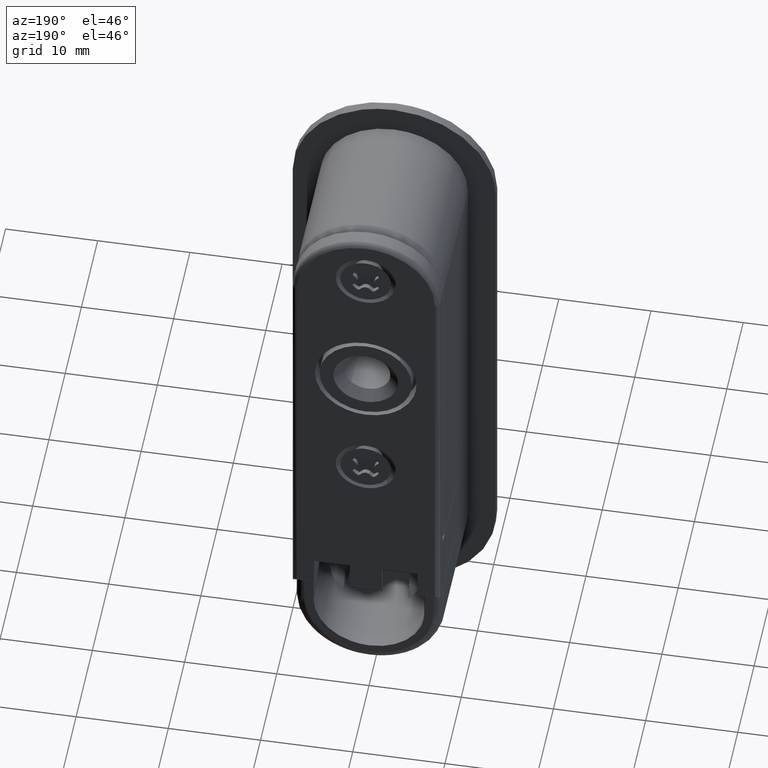
[diagram: clean part render]
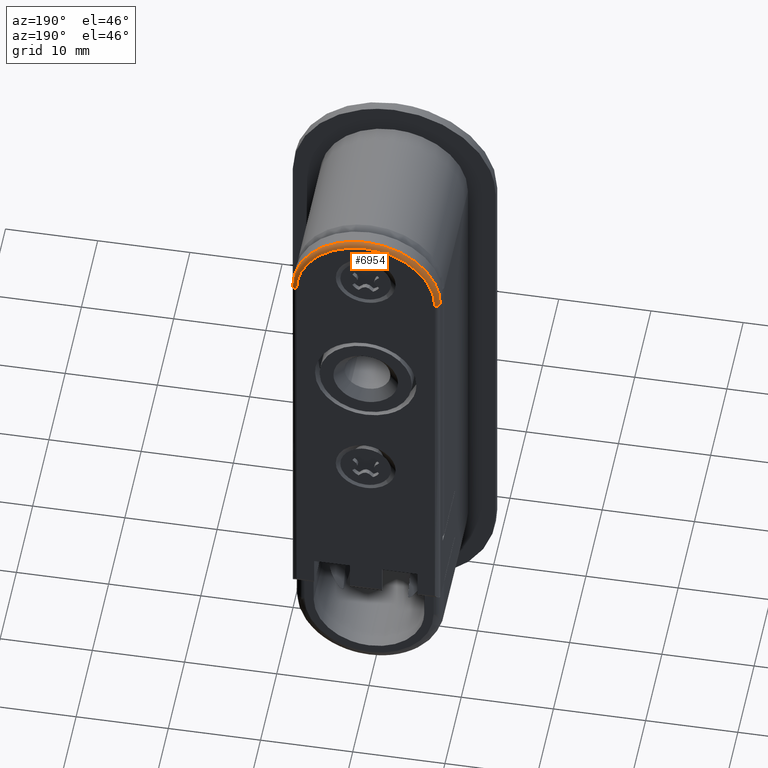
[diagram: same view with one face highlighted and labeled with its STEP entity id]
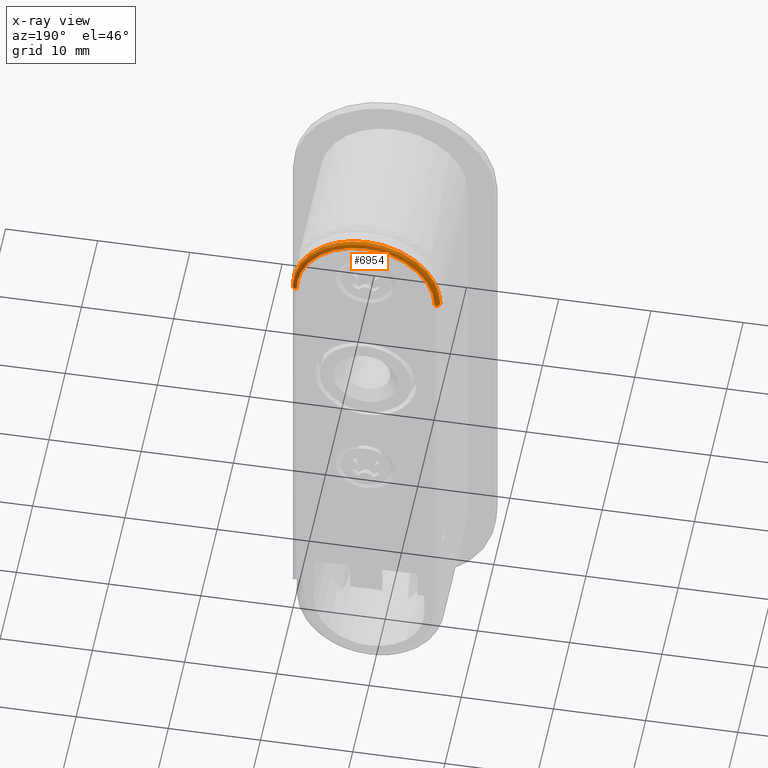
[diagram: x-ray of the same camera — body ghosted, the highlighted face saturated]
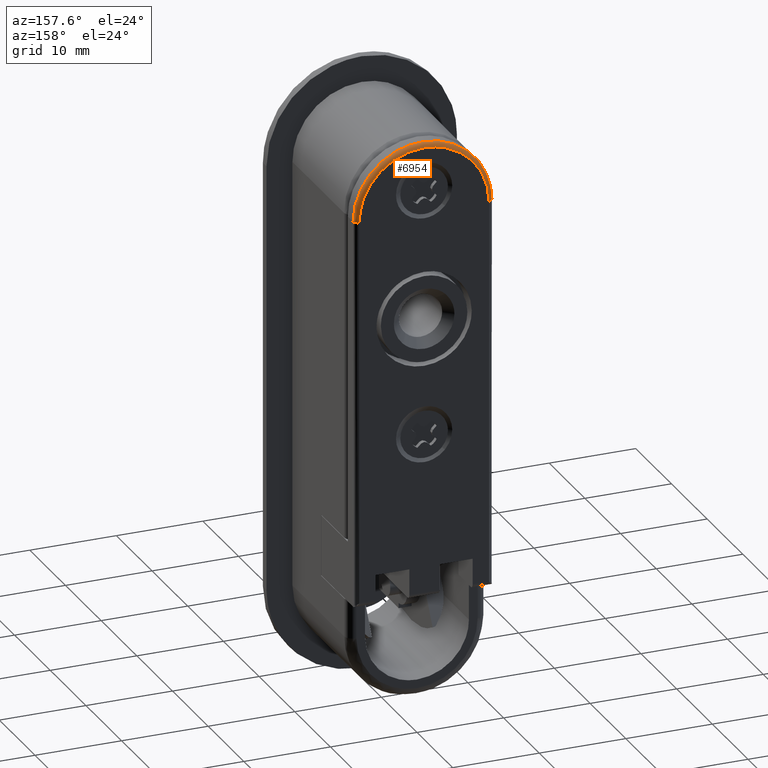
[diagram: same view with one face highlighted and labeled with its STEP entity id]
A machine part, auxiliary view. The second image highlights one B-rep face of the part: STEP entity #6954.
The next image is the same camera in x-ray: the body ghosted, the highlighted face saturated — about 0% of this face is hidden behind the body in this view.
A second angle (auxiliary view) of the same face is appended — the face is thin or edge-on in the first view.
In plain terms, the highlighted face is a freeform B-spline surface patch.
Its self-contained STEP definition (entity closure, byte-faithful):
#5100=CARTESIAN_POINT('',(-7.499999999999999,12.000000000049200,41.500000000014012));
#5101=VERTEX_POINT('',#5100);
#5107=CARTESIAN_POINT('',(0.000001128365799,12.000000000049200,49.000000000013692));
#5108=VERTEX_POINT('',#5107);
#5109=CARTESIAN_POINT('',(-7.499999999999999,12.000000000049200,41.500000000014012));
#5110=CARTESIAN_POINT('',(-7.500101783111068,12.000000000049200,42.052240832260168));
#5111=CARTESIAN_POINT('',(-7.387657950240686,12.000000000049191,43.064618085157448));
#5112=CARTESIAN_POINT('',(-6.951368799595961,12.000000000049241,44.413055748396353));
#5113=CARTESIAN_POINT('',(-6.420688062213513,12.000000000049120,45.420616253843818));
#5114=CARTESIAN_POINT('',(-5.778221610078292,12.000000000049219,46.321061148087317));
#5115=CARTESIAN_POINT('',(-5.098789442588561,12.000000000049230,47.034714342915471));
#5116=CARTESIAN_POINT('',(-4.182731466895677,12.000000000049180,47.758691432499077));
#5117=CARTESIAN_POINT('',(-3.167633007408419,12.000000000049210,48.342036404113308));
#5118=CARTESIAN_POINT('',(-1.717963747864389,12.000000000049200,48.860719003666162));
#5119=CARTESIAN_POINT('',(-0.644292917732422,12.000000000049210,49.000209476356432));
#5120=CARTESIAN_POINT('',(0.000001128365799,12.000000000049200,49.000000000013692));
#5121=B_SPLINE_CURVE_WITH_KNOTS('',3,(#5109,#5110,#5111,#5112,#5113,#5114,#5115,#5116,#5117,#5118,#5119,#5120),.UNSPECIFIED.,.F.,.U.,(4,1,1,1,1,1,1,1,1,4),(0.000000032479953,1.656703615167171,3.037302486870118,4.233828489456463,5.062190709090426,6.350694220941579,7.179064487230969,8.559664245089049,9.848224876135495,11.781047007533219),.UNSPECIFIED.);
#5122=EDGE_CURVE('',#5101,#5108,#5121,.T.);
#5124=CARTESIAN_POINT('',(7.499999999999771,12.000000000049200,41.500000000014012));
#5125=VERTEX_POINT('',#5124);
#5126=CARTESIAN_POINT('',(0.000001128365799,12.000000000049200,49.000000000013692));
#5127=CARTESIAN_POINT('',(0.429508513556774,12.000000000049191,49.000024835646521));
#5128=CARTESIAN_POINT('',(1.380581301384249,12.000000000049210,48.918127437876322));
#5129=CARTESIAN_POINT('',(2.686431920012060,12.000000000049219,48.548136459930859));
#5130=CARTESIAN_POINT('',(3.817017807811974,12.000000000049180,47.987634003976261));
#5131=CARTESIAN_POINT('',(4.776458875996017,12.000000000049230,47.320691820468603));
#5132=CARTESIAN_POINT('',(5.534714150770748,12.000000000049170,46.598788643309902));
#5133=CARTESIAN_POINT('',(6.258693211530202,12.000000000049290,45.682733767369903));
#5134=CARTESIAN_POINT('',(6.842032798964343,12.000000000049029,44.667631732865630));
#5135=CARTESIAN_POINT('',(7.360731026762397,12.000000000049340,43.217967207383950));
#5136=CARTESIAN_POINT('',(7.500196368746857,12.000000000049130,42.144292265397873));
#5137=CARTESIAN_POINT('',(7.499999999999771,12.000000000049200,41.500000000014012));
#5138=B_SPLINE_CURVE_WITH_KNOTS('',3,(#5126,#5127,#5128,#5129,#5130,#5131,#5132,#5133,#5134,#5135,#5136,#5137),.UNSPECIFIED.,.F.,.U.,(4,1,1,1,1,1,1,1,1,4),(0.000000032860946,1.288532660889167,2.853221713079094,4.049747089234615,5.062190162630781,6.350693535566588,7.179063712820294,8.559663320790584,9.848223812552901,11.781045735593869),.UNSPECIFIED.);
#5139=EDGE_CURVE('',#5108,#5125,#5138,.T.);
#6019=CARTESIAN_POINT('',(7.999999999999770,11.500000000049241,41.500000000014012));
#6020=VERTEX_POINT('',#6019);
#6869=CARTESIAN_POINT('',(7.499999999999771,12.000000000049200,41.500000000014012));
#6870=CARTESIAN_POINT('',(7.573654114324267,12.000115140531610,41.500000000014012));
#6871=CARTESIAN_POINT('',(7.712628815874464,11.968705310206040,41.500000000014033));
#6872=CARTESIAN_POINT('',(7.873428949446218,11.849502506791641,41.500000000013870));
#6873=CARTESIAN_POINT('',(7.975550520383315,11.688122833451031,41.500000000014289));
#6874=CARTESIAN_POINT('',(8.000067224759818,11.565460222444200,41.500000000013827));
#6875=CARTESIAN_POINT('',(7.999999999999770,11.500000000049241,41.500000000014012));
#6876=B_SPLINE_CURVE_WITH_KNOTS('',3,(#6869,#6870,#6871,#6872,#6873,#6874,#6875),.UNSPECIFIED.,.F.,.U.,(4,1,1,1,4),(0.000000153093245,0.220920011260662,0.417279695214484,0.589107744513734,0.785476941653875),.UNSPECIFIED.);
#6877=EDGE_CURVE('',#5125,#6020,#6876,.T.);
#6882=CARTESIAN_POINT('',(-7.918399863119090,11.465137866158123,40.368860971045990));
#6883=CARTESIAN_POINT('',(-9.222604183134322,11.465137866158123,49.498783150912594));
#6884=CARTESIAN_POINT('',(7.020140E-016,11.465137866158127,49.498783150912594));
#6885=CARTESIAN_POINT('',(9.222604289430256,11.465137866158122,49.498783150912615));
#6886=CARTESIAN_POINT('',(7.918399850213066,11.465137866158127,40.368860880698932));
#6887=CARTESIAN_POINT('',(-7.958083532971561,12.038667853186675,40.363192180815801));
#6888=CARTESIAN_POINT('',(-9.268823973232088,12.038667853186675,49.538869667793392));
#6889=CARTESIAN_POINT('',(7.371315E-016,12.038667853186677,49.538869667793378));
#6890=CARTESIAN_POINT('',(9.268824080060737,12.038667853186677,49.538869667793413));
#6891=CARTESIAN_POINT('',(7.958083520000859,12.038667853186679,40.363192090015957));
#6892=CARTESIAN_POINT('',(-7.390302375809749,11.998796174783449,40.444299404229653));
#6893=CARTESIAN_POINT('',(-8.607526114363573,11.998796174783443,48.965324705198533));
#6894=CARTESIAN_POINT('',(7.346901E-016,11.998796174783449,48.965324705198562));
#6895=CARTESIAN_POINT('',(8.607526213570370,11.998796174783447,48.965324705198540));
#6896=CARTESIAN_POINT('',(7.390302363764457,11.998796174783449,40.444299319908069));
#6904=(BOUNDED_SURFACE()B_SPLINE_SURFACE(2,2,((#6882,#6887,#6892),(#6883,#6888,#6893),(#6884,#6889,#6894),(#6885,#6890,#6895),(#6886,#6891,#6896)),.UNSPECIFIED.,.F.,.F.,.U.)B_SPLINE_SURFACE_WITH_KNOTS((3,2,3),(3,3),(0.0,14.602836891336800,29.205673892567049),(0.0,0.911185222415858),.UNSPECIFIED.)GEOMETRIC_REPRESENTATION_ITEM()RATIONAL_B_SPLINE_SURFACE(((0.907497574202191,0.597178570225141,0.912552314046761),(0.596661315691966,0.392632841720625,0.599984704990052),(0.913811094967896,0.601333181114613,0.918901000972554),(0.596661313305260,0.392632840150053,0.599984702590052),(0.907497578880578,0.597178573303753,0.912552318751207)))REPRESENTATION_ITEM('')SURFACE());
#6905=CARTESIAN_POINT('',(-7.999999999999768,11.500000000049241,41.500000000014012));
#6906=VERTEX_POINT('',#6905);
#6907=CARTESIAN_POINT('',(-7.499999999999999,12.000000000049200,41.500000000014012));
#6908=CARTESIAN_POINT('',(-7.573652647636703,12.000115359754270,41.500000000014012));
#6909=CARTESIAN_POINT('',(-7.696266254834678,11.972375036864360,41.500000000014033));
#6910=CARTESIAN_POINT('',(-7.854461957513233,11.866707578464680,41.500000000013991));
#6911=CARTESIAN_POINT('',(-7.968706839947875,11.712636155997940,41.500000000014083));
#6912=CARTESIAN_POINT('',(-8.000115082543022,11.573652320277610,41.500000000013962));
#6913=CARTESIAN_POINT('',(-7.999999999999768,11.500000000049241,41.500000000014012));
#6914=B_SPLINE_CURVE_WITH_KNOTS('',3,(#6907,#6908,#6909,#6910,#6911,#6912,#6913),.UNSPECIFIED.,.F.,.U.,(4,1,1,1,4),(0.000000153093276,0.220920011260567,0.368197399532573,0.564557083486282,0.785476941653579),.UNSPECIFIED.);
#6915=EDGE_CURVE('',#5101,#6906,#6914,.T.);
#6916=ORIENTED_EDGE('',*,*,#6915,.T.);
#6917=CARTESIAN_POINT('',(-0.000000526764471,11.500000000049241,49.500000000013763));
#6918=VERTEX_POINT('',#6917);
#6919=CARTESIAN_POINT('',(-0.000000526764471,11.500000000049241,49.500000000013763));
#6920=CARTESIAN_POINT('',(-0.523600539489356,11.500000000049219,49.500059792218217));
#6921=CARTESIAN_POINT('',(-1.505321442920905,11.500000000049260,49.403274482277972));
#6922=CARTESIAN_POINT('',(-2.830262366862700,11.500000000049260,49.019047156293603));
#6923=CARTESIAN_POINT('',(-4.076143559674230,11.500000000049260,48.429806728693507));
#6924=CARTESIAN_POINT('',(-5.151517300749736,11.500000000049161,47.672456766738790));
#6925=CARTESIAN_POINT('',(-6.126015805933558,11.500000000049351,46.697906017902682));
#6926=CARTESIAN_POINT('',(-6.972682309555406,11.500000000049161,45.526656335538043));
#6927=CARTESIAN_POINT('',(-7.603422238963479,11.500000000049280,44.149687113134391));
#6928=CARTESIAN_POINT('',(-7.937234123637706,11.500000000049150,42.743532558323921));
#6929=CARTESIAN_POINT('',(-8.000015613053879,11.500000000049409,41.892691452967931));
#6930=CARTESIAN_POINT('',(-7.999999999999768,11.500000000049241,41.500000000014012));
#6931=B_SPLINE_CURVE_WITH_KNOTS('',3,(#6919,#6920,#6921,#6922,#6923,#6924,#6925,#6926,#6927,#6928,#6929,#6930),.UNSPECIFIED.,.F.,.U.,(4,1,1,1,1,1,1,1,1,4),(0.000000021413875,1.570796055823557,2.945260406407460,4.123367183829828,5.694189280836815,6.872255561039235,8.246726346273118,10.013895630636769,11.388364876373769,12.566449166105780),.UNSPECIFIED.);
#6932=EDGE_CURVE('',#6918,#6906,#6931,.T.);
#6933=ORIENTED_EDGE('',*,*,#6932,.F.);
#6934=CARTESIAN_POINT('',(7.999999999999770,11.500000000049241,41.500000000014012));
#6935=CARTESIAN_POINT('',(8.000163234071231,11.500000000049260,42.154511309478600));
#6936=CARTESIAN_POINT('',(7.870746769751366,11.500000000049180,43.201623735865908));
#6937=CARTESIAN_POINT('',(7.438372745943913,11.500000000049340,44.510230338145711));
#6938=CARTESIAN_POINT('',(6.949430861617725,11.500000000049090,45.512034855424673));
#6939=CARTESIAN_POINT('',(6.293159199209662,11.500000000049310,46.494255562245449));
#6940=CARTESIAN_POINT('',(5.533099146771999,11.500000000049230,47.312443789927563));
#6941=CARTESIAN_POINT('',(4.621308768058364,11.500000000049230,48.060705419753269));
#6942=CARTESIAN_POINT('',(3.558731273588121,11.500000000049260,48.715533525011843));
#6943=CARTESIAN_POINT('',(1.963378327082776,11.500000000049230,49.330940993638947));
#6944=CARTESIAN_POINT('',(0.719971993949986,11.500000000049241,49.500249582147163));
#6945=CARTESIAN_POINT('',(-0.000000526764471,11.500000000049241,49.500000000013763));
#6946=B_SPLINE_CURVE_WITH_KNOTS('',3,(#6934,#6935,#6936,#6937,#6938,#6939,#6940,#6941,#6942,#6943,#6944,#6945),.UNSPECIFIED.,.F.,.U.,(4,1,1,1,1,1,1,1,1,4),(0.000000021226343,1.963494951574672,3.141612916517525,4.123367378437250,5.301492358040901,6.675909990070375,7.461309244223680,8.835778554881502,10.406599888295540,12.566449759895811),.UNSPECIFIED.);
#6947=EDGE_CURVE('',#6020,#6918,#6946,.T.);
#6948=ORIENTED_EDGE('',*,*,#6947,.F.);
#6949=ORIENTED_EDGE('',*,*,#6877,.F.);
#6950=ORIENTED_EDGE('',*,*,#5139,.F.);
#6951=ORIENTED_EDGE('',*,*,#5122,.F.);
#6952=EDGE_LOOP('',(#6916,#6933,#6948,#6949,#6950,#6951));
#6953=FACE_OUTER_BOUND('',#6952,.T.);
#6954=ADVANCED_FACE('',(#6953),#6904,.T.);